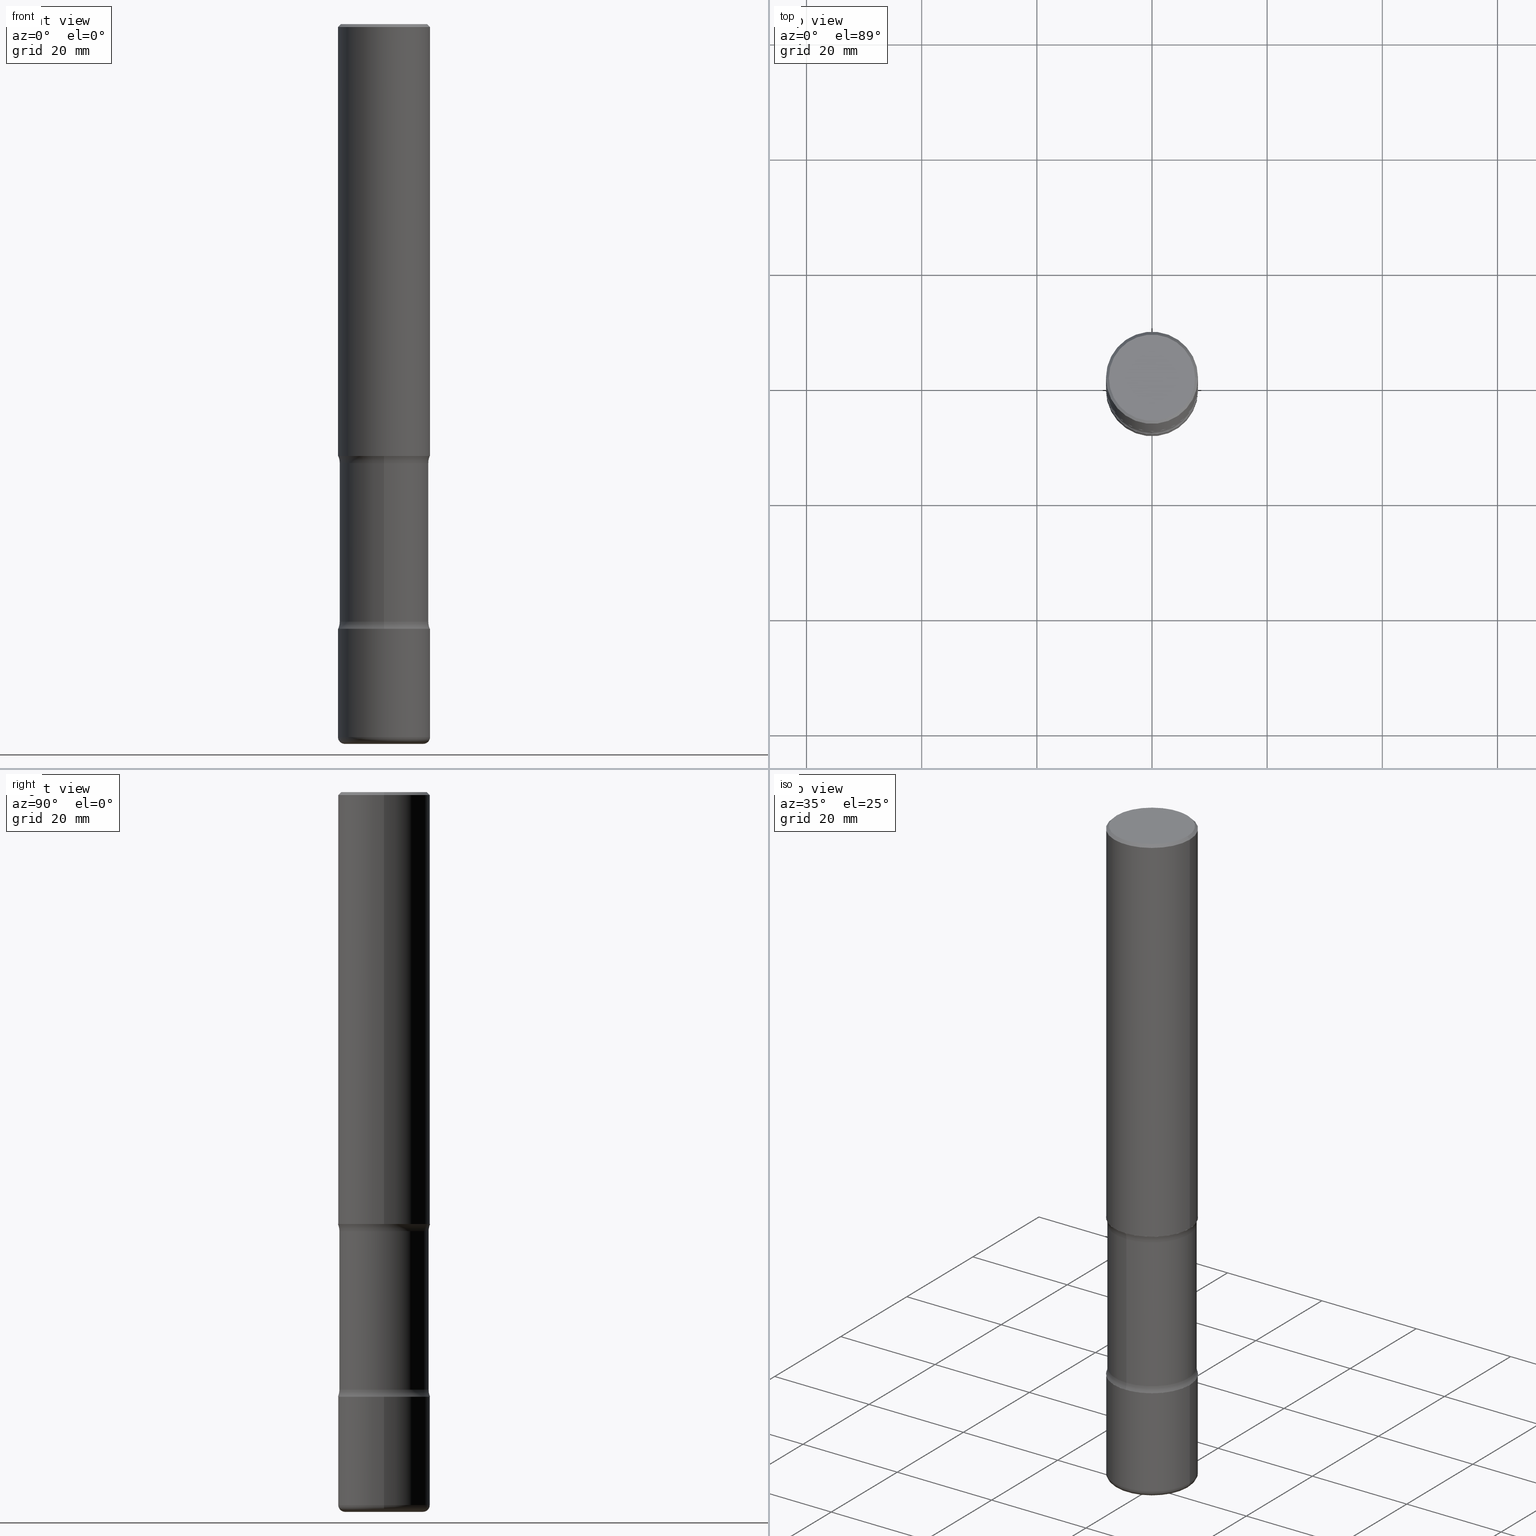
[diagram: canonical four-view strip — front | top / right | iso, engineering-drawing reading convention]
A machine part, canonical four-view strip (front | top / right | iso — engineering-drawing reading convention). The complete STEP part file that produces these views, byte-faithful:
ISO-10303-21;
HEADER;
FILE_DESCRIPTION (( 'STEP AP203' ),
    '1' );
FILE_NAME ('44966.STEP',
    '2024-03-02T04:05:12',
    ( '' ),
    ( '' ),
    'SwSTEP 2.0',
    'SolidWorks 2023',
    '' );
FILE_SCHEMA (( 'CONFIG_CONTROL_DESIGN' ));
ENDSEC;

DATA;
#1 = DATE_TIME_ROLE ( 'creation_date' ) ;
#2 = CIRCLE ( 'NONE', #301, 0.2677500000000002656 ) ;
#3 = APPROVAL_PERSON_ORGANIZATION ( #347, #390, #437 ) ;
#4 = DIRECTION ( 'NONE',  ( 2.567425907890858451E-29, -3.316831827833398617E-15, -1.000000000000000000 ) ) ;
#5 =( LENGTH_UNIT ( ) NAMED_UNIT ( * ) SI_UNIT ( $, .METRE. ) );
#6 = APPROVAL_DATE_TIME ( #86, #390 ) ;
#7 = EDGE_CURVE ( 'NONE', #246, #32, #523, .T. ) ;
#8 = DIRECTION ( 'NONE',  ( 1.000000000000000000, -6.982962677686266711E-15, 4.876176775795936353E-29 ) ) ;
#9 = CIRCLE ( 'NONE', #281, 0.3149500000000001743 ) ;
#10 = DIRECTION ( 'NONE',  ( 6.982962677686266711E-15, 1.000000000000000000, -3.582751467100673306E-15 ) ) ;
#11 = ADVANCED_FACE ( 'NONE', ( #135 ), #42, .T. ) ;
#12 = VECTOR ( 'NONE', #4, 39.37007874015748143 ) ;
#13 = CARTESIAN_POINT ( 'NONE',  ( 1.213091465776199422E-28, -1.704510808787969270E-14, -4.921299999999998676 ) ) ;
#14 = DIRECTION ( 'NONE',  ( -2.445468806185136597E-29, 3.491481338843145583E-15, 1.000000000000000000 ) ) ;
#15 = CALENDAR_DATE ( 2024, 1, 3 ) ;
#16 = CARTESIAN_POINT ( 'NONE',  ( 7.076936758078842679E-29, -1.051592463478965167E-14, -2.952799999999999869 ) ) ;
#17 = ADVANCED_FACE ( 'NONE', ( #180 ), #190, .T. ) ;
#18 = DIRECTION ( 'NONE',  ( -1.000000000000000000, 6.982962677686265922E-15, 0.000000000000000000 ) ) ;
#19 = AXIS2_PLACEMENT_3D ( 'NONE', #395, #399, #263 ) ;
#20 = CC_DESIGN_PERSON_AND_ORGANIZATION_ASSIGNMENT ( #502, #164, ( #154 ) ) ;
#21 = ORIENTED_EDGE ( 'NONE', *, *, #167, .T. ) ;
#22 = FACE_OUTER_BOUND ( 'NONE', #214, .T. ) ;
#23 = PLANE ( 'NONE',  #337 ) ;
#24 = EDGE_CURVE ( 'NONE', #169, #209, #9, .T. ) ;
#25 = DIRECTION ( 'NONE',  ( 2.438088387897960049E-29, -3.491481338843145188E-15, -1.000000000000000000 ) ) ;
#26 = ORIENTED_EDGE ( 'NONE', *, *, #68, .F. ) ;
#27 = ADVANCED_FACE ( 'NONE', ( #306 ), #174, .T. ) ;
#28 = CARTESIAN_POINT ( 'NONE',  ( 7.220980290903470182E-29, -1.030964609733603853E-14, -2.952799999999999869 ) ) ;
#29 = CIRCLE ( 'NONE', #429, 0.04720000000000004747 ) ;
#30 = TOROIDAL_SURFACE ( 'NONE', #58, 0.4300000000000000488, 0.1250000000000000000 ) ;
#31 = FACE_OUTER_BOUND ( 'NONE', #420, .T. ) ;
#32 = VERTEX_POINT ( 'NONE', #482 ) ;
#33 = DIRECTION ( 'NONE',  ( 6.982962677686265922E-15, 1.000000000000000000, -3.316831827833398617E-15 ) ) ;
#34 = DIRECTION ( 'NONE',  ( 6.982962677686265133E-15, 1.000000000000000000, -3.582751467100672517E-15 ) ) ;
#35 = ORIENTED_EDGE ( 'NONE', *, *, #84, .T. ) ;
#36 = PERSON_AND_ORGANIZATION_ROLE ( 'creator' ) ;
#37 = ORIENTED_EDGE ( 'NONE', *, *, #308, .T. ) ;
#38 = CIRCLE ( 'NONE', #392, 0.3049999999999999933 ) ;
#39 = CC_DESIGN_APPROVAL ( #206, ( #147 ) ) ;
#40 = EDGE_LOOP ( 'NONE', ( #322, #161 ) ) ;
#41 = ORIENTED_EDGE ( 'NONE', *, *, #525, .T. ) ;
#42 = CYLINDRICAL_SURFACE ( 'NONE', #159, 0.3149500000000002298 ) ;
#43 = PLANE ( 'NONE',  #310 ) ;
#44 = CARTESIAN_POINT ( 'NONE',  ( 2.129803616694432752E-15, 0.3049999999999830069, -4.921299999999999564 ) ) ;
#45 = CARTESIAN_POINT ( 'NONE',  ( -1.043851414335219820E-46, 1.490343170380447200E-32, 4.268512490100411279E-18 ) ) ;
#46 = AXIS2_PLACEMENT_3D ( 'NONE', #197, #448, #102 ) ;
#47 = CIRCLE ( 'NONE', #511, 0.3149500000000002298 ) ;
#48 = CARTESIAN_POINT ( 'NONE',  ( 9.983847599202101310E-29, -1.427133364927305841E-14, -4.085027743043726289 ) ) ;
#49 = FACE_OUTER_BOUND ( 'NONE', #346, .T. ) ;
#50 = COORDINATED_UNIVERSAL_TIME_OFFSET ( 5, 0, .BEHIND. ) ;
#51 = EDGE_CURVE ( 'NONE', #383, #387, #357, .T. ) ;
#52 = DIRECTION ( 'NONE',  ( -2.445468806185136597E-29, 3.491481338843145583E-15, 1.000000000000000000 ) ) ;
#53 = CC_DESIGN_PERSON_AND_ORGANIZATION_ASSIGNMENT ( #299, #473, ( #147 ) ) ;
#54 = CARTESIAN_POINT ( 'NONE',  ( -0.2677500000000002656, -1.503006189261502339E-14, -4.921300000000000452 ) ) ;
#55 = CIRCLE ( 'NONE', #60, 0.3149500000000002298 ) ;
#56 = CARTESIAN_POINT ( 'NONE',  ( 1.203488563587891594E-28, -1.718262711284877655E-14, -4.921300000000000452 ) ) ;
#57 = MANIFOLD_SOLID_BREP ( 'Body-Move/Copy2[2]', #202 ) ;
#58 = AXIS2_PLACEMENT_3D ( 'NONE', #527, #218, #393 ) ;
#59 = DIRECTION ( 'NONE',  ( 1.000000000000000000, -6.982962677686267499E-15, 4.876176775795935232E-29 ) ) ;
#60 = AXIS2_PLACEMENT_3D ( 'NONE', #447, #405, #186 ) ;
#61 = SHAPE_DEFINITION_REPRESENTATION ( #187, #177 ) ;
#62 = CARTESIAN_POINT ( 'NONE',  ( 2.199284095337391634E-15, 0.3149499999999856859, -4.133900000000000574 ) ) ;
#63 = ORIENTED_EDGE ( 'NONE', *, *, #230, .T. ) ;
#64 = DIRECTION ( 'NONE',  ( 1.000000000000000000, -6.982962677686267499E-15, 4.876053491004737710E-29 ) ) ;
#65 = CARTESIAN_POINT ( 'NONE',  ( 7.197422926421381501E-29, -1.068517127001083718E-14, -3.001672256956273710 ) ) ;
#66 = VERTEX_POINT ( 'NONE', #438 ) ;
#67 = CARTESIAN_POINT ( 'NONE',  ( 4.890937612370289799E-31, -6.982962677686315028E-17, -0.02000000000000006981 ) ) ;
#68 = EDGE_CURVE ( 'NONE', #469, #76, #219, .T. ) ;
#69 = DIRECTION ( 'NONE',  ( -2.445468806185136597E-29, 3.491481338843145583E-15, 1.000000000000000000 ) ) ;
#70 = DIRECTION ( 'NONE',  ( -2.445468806185136877E-29, 3.491481338843145188E-15, 1.000000000000000000 ) ) ;
#71 = APPROVAL_PERSON_ORGANIZATION ( #291, #381, #520 ) ;
#72 = ORIENTED_EDGE ( 'NONE', *, *, #51, .T. ) ;
#73 = CARTESIAN_POINT ( 'NONE',  ( -0.3149500000000000077, 2.237854346276435590E-15, -1.549218606675782676E-29 ) ) ;
#74 = DIRECTION ( 'NONE',  ( -1.000000000000000000, 6.982962677686265922E-15, 0.000000000000000000 ) ) ;
#75 = ADVANCED_FACE ( 'NONE', ( #178 ), #268, .T. ) ;
#76 = VERTEX_POINT ( 'NONE', #134 ) ;
#77 = CARTESIAN_POINT ( 'NONE',  ( -0.3149499999999998967, 2.129454468560425784E-15, -0.02000000000000006981 ) ) ;
#78 = ORIENTED_EDGE ( 'NONE', *, *, #308, .F. ) ;
#79 = CIRCLE ( 'NONE', #146, 0.2677500000000002656 ) ;
#80 = CC_DESIGN_APPROVAL ( #390, ( #382 ) ) ;
#81 = FACE_OUTER_BOUND ( 'NONE', #430, .T. ) ;
#82 = EDGE_LOOP ( 'NONE', ( #260, #343, #251, #129 ) ) ;
#83 = VERTEX_POINT ( 'NONE', #529 ) ;
#84 = EDGE_CURVE ( 'NONE', #379, #109, #541, .T. ) ;
#85 = VERTEX_POINT ( 'NONE', #226 ) ;
#86 = DATE_AND_TIME ( #220, #457 ) ;
#87 = AXIS2_PLACEMENT_3D ( 'NONE', #175, #421, #33 ) ;
#88 = AXIS2_PLACEMENT_3D ( 'NONE', #250, #188, #359 ) ;
#89 = DIRECTION ( 'NONE',  ( -1.000000000000000000, 6.982962677686265922E-15, -4.883557194083112340E-29 ) ) ;
#90 = DIRECTION ( 'NONE',  ( -2.445468806185136597E-29, 3.491481338843145583E-15, 1.000000000000000000 ) ) ;
#91 = UNCERTAINTY_MEASURE_WITH_UNIT (LENGTH_MEASURE( 1.000000000000000082E-05 ), #431, 'distance_accuracy_value', 'NONE');
#92 = DIRECTION ( 'NONE',  ( -2.445468806185136597E-29, 3.491481338843145583E-15, 1.000000000000000000 ) ) ;
#93 = CARTESIAN_POINT ( 'NONE',  ( 1.191945950822697745E-28, -1.701782919365538030E-14, -4.874100000000001209 ) ) ;
#94 = CIRCLE ( 'NONE', #139, 0.3149500000000003408 ) ;
#95 = CONICAL_SURFACE ( 'NONE', #132, 0.3149499999999998967, 0.7853981633974479459 ) ;
#96 = DIRECTION ( 'NONE',  ( 2.567425907890858451E-29, -3.316831827833398617E-15, -1.000000000000000000 ) ) ;
#97 = ADVANCED_FACE ( 'NONE', ( #140 ), #524, .T. ) ;
#98 = DIRECTION ( 'NONE',  ( -2.445468806185136597E-29, 3.491481338843145583E-15, 1.000000000000000000 ) ) ;
#99 = CARTESIAN_POINT ( 'NONE',  ( 4.890937612370289799E-31, -6.982962677686315028E-17, -0.02000000000000006981 ) ) ;
#100 = APPROVAL_STATUS ( 'not_yet_approved' ) ;
#101 = TOROIDAL_SURFACE ( 'NONE', #88, 0.4300000000000000488, 0.1250000000000000000 ) ;
#102 = DIRECTION ( 'NONE',  ( 6.982962677686265133E-15, 1.000000000000000000, -3.582751467100671728E-15 ) ) ;
#103 = FACE_OUTER_BOUND ( 'NONE', #82, .T. ) ;
#104 = CIRCLE ( 'NONE', #176, 0.3149499999999998967 ) ;
#105 = EDGE_LOOP ( 'NONE', ( #338, #148, #385, #279 ) ) ;
#106 = ADVANCED_FACE ( 'NONE', ( #344 ), #433, .T. ) ;
#107 = CARTESIAN_POINT ( 'NONE',  ( -1.043851414335219820E-46, 1.490343170380447200E-32, 4.268512490100411279E-18 ) ) ;
#108 = EDGE_CURVE ( 'NONE', #209, #32, #449, .T. ) ;
#109 = VERTEX_POINT ( 'NONE', #352 ) ;
#110 = VECTOR ( 'NONE', #354, 39.37007874015748143 ) ;
#111 = AXIS2_PLACEMENT_3D ( 'NONE', #540, #326, #152 ) ;
#112 = EDGE_CURVE ( 'NONE', #83, #117, #2, .T. ) ;
#113 = DIRECTION ( 'NONE',  ( -2.567425907890857890E-29, 3.316831827833398617E-15, 1.000000000000000000 ) ) ;
#114 = EDGE_LOOP ( 'NONE', ( #463, #423, #426, #240 ) ) ;
#115 = LINE ( 'NONE', #287, #210 ) ;
#116 = DIRECTION ( 'NONE',  ( 2.438088387897960049E-29, -3.491481338843145188E-15, -1.000000000000000000 ) ) ;
#117 = VERTEX_POINT ( 'NONE', #54 ) ;
#118 = CARTESIAN_POINT ( 'NONE',  ( 0.2677500000000002656, -1.888751745060587925E-14, -4.874100000000001209 ) ) ;
#119 = ORIENTED_EDGE ( 'NONE', *, *, #470, .T. ) ;
#120 = DIRECTION ( 'NONE',  ( 1.000000000000000000, -6.860497997771530774E-15, 4.842937719270450124E-29 ) ) ;
#121 = VECTOR ( 'NONE', #207, 39.37007874015748143 ) ;
#122 = AXIS2_PLACEMENT_3D ( 'NONE', #380, #90, #464 ) ;
#123 = EDGE_LOOP ( 'NONE', ( #503, #546, #126, #293 ) ) ;
#124 = EDGE_CURVE ( 'NONE', #76, #472, #245, .T. ) ;
#125 = ORIENTED_EDGE ( 'NONE', *, *, #271, .F. ) ;
#126 = ORIENTED_EDGE ( 'NONE', *, *, #127, .T. ) ;
#127 = EDGE_CURVE ( 'NONE', #469, #246, #435, .T. ) ;
#128 = SECURITY_CLASSIFICATION_LEVEL ( 'unclassified' ) ;
#129 = ORIENTED_EDGE ( 'NONE', *, *, #230, .F. ) ;
#130 = AXIS2_PLACEMENT_3D ( 'NONE', #303, #52, #264 ) ;
#131 = EDGE_CURVE ( 'NONE', #370, #383, #199, .T. ) ;
#132 = AXIS2_PLACEMENT_3D ( 'NONE', #67, #235, #18 ) ;
#133 = AXIS2_PLACEMENT_3D ( 'NONE', #391, #96, #526 ) ;
#134 = CARTESIAN_POINT ( 'NONE',  ( 2.199284095337362446E-15, 0.3149499999999899047, -2.952800000000000757 ) ) ;
#135 = FACE_OUTER_BOUND ( 'NONE', #374, .T. ) ;
#136 = DIRECTION ( 'NONE',  ( 1.000000000000000000, -6.982962677686267499E-15, 4.876053491004737710E-29 ) ) ;
#137 = DATE_AND_TIME ( #183, #221 ) ;
#138 = DIRECTION ( 'NONE',  ( 1.000000000000000000, -6.982962677686267499E-15, 4.876176775795935232E-29 ) ) ;
#139 = AXIS2_PLACEMENT_3D ( 'NONE', #16, #408, #500 ) ;
#140 = FACE_OUTER_BOUND ( 'NONE', #555, .T. ) ;
#141 = APPROVAL_DATE_TIME ( #137, #206 ) ;
#142 = CARTESIAN_POINT ( 'NONE',  ( 0.000000000000000000, 0.000000000000000000, 0.000000000000000000 ) ) ;
#143 = COORDINATED_UNIVERSAL_TIME_OFFSET ( 5, 0, .BEHIND. ) ;
#144 = FACE_OUTER_BOUND ( 'NONE', #353, .T. ) ;
#145 = CARTESIAN_POINT ( 'NONE',  ( 2.129803616694383843E-15, 0.3049999999999893907, -3.001672256956274598 ) ) ;
#146 = AXIS2_PLACEMENT_3D ( 'NONE', #56, #462, #239 ) ;
#147 = SECURITY_CLASSIFICATION ( '', '', #128 ) ;
#148 = ORIENTED_EDGE ( 'NONE', *, *, #24, .F. ) ;
#149 = DIRECTION ( 'NONE',  ( 1.000000000000000000, -6.982962677686269866E-15, 0.000000000000000000 ) ) ;
#150 = ADVANCED_FACE ( 'NONE', ( #31 ), #313, .T. ) ;
#151 = ORIENTED_EDGE ( 'NONE', *, *, #253, .T. ) ;
#152 = DIRECTION ( 'NONE',  ( 6.982962677686265133E-15, 1.000000000000000000, -3.582751467100671728E-15 ) ) ;
#153 = ADVANCED_FACE ( 'NONE', ( #369 ), #355, .F. ) ;
#154 = PRODUCT ( '44966', '44966', '', ( #156 ) ) ;
#155 = DIRECTION ( 'NONE',  ( 7.105427357601001859E-15, 1.000000000000000000, -3.491481338843145583E-15 ) ) ;
#156 = MECHANICAL_CONTEXT ( 'NONE', #445, 'mechanical' ) ;
#157 = CIRCLE ( 'NONE', #403, 0.04720000000000004747 ) ;
#158 = AXIS2_PLACEMENT_3D ( 'NONE', #320, #496, #149 ) ;
#159 = AXIS2_PLACEMENT_3D ( 'NONE', #142, #478, #138 ) ;
#160 = CARTESIAN_POINT ( 'NONE',  ( 3.002673951405194792E-15, 0.4299999999999857825, -4.085027743043728066 ) ) ;
#161 = ORIENTED_EDGE ( 'NONE', *, *, #507, .T. ) ;
#162 = ORIENTED_EDGE ( 'NONE', *, *, #537, .F. ) ;
#163 = CARTESIAN_POINT ( 'NONE',  ( 0.3149500000000000077, -2.199284095337289871E-15, 1.535751875536930130E-29 ) ) ;
#164 = PERSON_AND_ORGANIZATION_ROLE ( 'design_owner' ) ;
#165 = VERTEX_POINT ( 'NONE', #539 ) ;
#166 =( NAMED_UNIT ( * ) PLANE_ANGLE_UNIT ( ) SI_UNIT ( $, .RADIAN. ) );
#167 = EDGE_CURVE ( 'NONE', #32, #246, #38, .T. ) ;
#168 = ORIENTED_EDGE ( 'NONE', *, *, #397, .F. ) ;
#169 = VERTEX_POINT ( 'NONE', #62 ) ;
#170 = EDGE_CURVE ( 'NONE', #169, #246, #362, .T. ) ;
#171 = PERSON_AND_ORGANIZATION ( #531, #228 ) ;
#172 = ORIENTED_EDGE ( 'NONE', *, *, #112, .F. ) ;
#173 = EDGE_CURVE ( 'NONE', #83, #383, #29, .T. ) ;
#174 = CYLINDRICAL_SURFACE ( 'NONE', #133, 0.3050000000000000488 ) ;
#175 = CARTESIAN_POINT ( 'NONE',  ( 7.220980290903470182E-29, -1.030964609733603853E-14, -2.952799999999999869 ) ) ;
#176 = AXIS2_PLACEMENT_3D ( 'NONE', #194, #233, #368 ) ;
#177 = ADVANCED_BREP_SHAPE_REPRESENTATION ( '44966', ( #436, #57, #249, #483 ), #494 ) ;
#178 = FACE_OUTER_BOUND ( 'NONE', #471, .T. ) ;
#179 = DESIGN_CONTEXT ( 'detailed design', #262, 'design' ) ;
#180 = FACE_OUTER_BOUND ( 'NONE', #504, .T. ) ;
#181 = CC_DESIGN_PERSON_AND_ORGANIZATION_ASSIGNMENT ( #479, #394, ( #321 ) ) ;
#182 = CARTESIAN_POINT ( 'NONE',  ( -2.950014139041658670E-15, -0.4300000000000143152, -4.085027743043724513 ) ) ;
#183 = CALENDAR_DATE ( 2024, 1, 3 ) ;
#184 = AXIS2_PLACEMENT_3D ( 'NONE', #501, #543, #332 ) ;
#185 = CARTESIAN_POINT ( 'NONE',  ( 1.191945950822697745E-28, -1.701782919365538030E-14, -4.874100000000001209 ) ) ;
#186 = DIRECTION ( 'NONE',  ( 1.000000000000000000, -6.982962677686264344E-15, 0.000000000000000000 ) ) ;
#187 = PRODUCT_DEFINITION_SHAPE ( 'NONE', 'NONE',  #321 ) ;
#188 = DIRECTION ( 'NONE',  ( 2.567425907890858451E-29, -3.316831827833398617E-15, -1.000000000000000000 ) ) ;
#189 = APPROVAL_ROLE ( '' ) ;
#190 = TOROIDAL_SURFACE ( 'NONE', #510, 0.2677500000000002656, 0.04720000000000001278 ) ;
#191 = DIRECTION ( 'NONE',  ( 2.438088387897960049E-29, -3.491481338843145188E-15, -1.000000000000000000 ) ) ;
#192 = AXIS2_PLACEMENT_3D ( 'NONE', #107, #69, #64 ) ;
#193 = ADVANCED_FACE ( 'NONE', ( #81 ), #314, .T. ) ;
#194 = CARTESIAN_POINT ( 'NONE',  ( 4.890937612370289799E-31, -6.982962677686315028E-17, -0.02000000000000006981 ) ) ;
#195 = CARTESIAN_POINT ( 'NONE',  ( -2.092451889320195532E-15, -0.3050000000000170908, -4.921299999999997787 ) ) ;
#196 = CARTESIAN_POINT ( 'NONE',  ( -0.3149500000000002853, -1.477997484737894116E-14, -4.874100000000001209 ) ) ;
#197 = CARTESIAN_POINT ( 'NONE',  ( 7.202412656765479231E-29, -1.067802569216027239E-14, -3.001672256956273710 ) ) ;
#198 = ORIENTED_EDGE ( 'NONE', *, *, #454, .T. ) ;
#199 = CIRCLE ( 'NONE', #274, 0.3149500000000002853 ) ;
#200 = ORIENTED_EDGE ( 'NONE', *, *, #255, .T. ) ;
#201 = VECTOR ( 'NONE', #70, 39.37007874015748143 ) ;
#202 = CLOSED_SHELL ( 'NONE', ( #106, #474, #241, #223, #424, #97 ) ) ;
#203 = LINE ( 'NONE', #163, #121 ) ;
#204 = ORIENTED_EDGE ( 'NONE', *, *, #312, .T. ) ;
#205 = FACE_OUTER_BOUND ( 'NONE', #340, .T. ) ;
#206 = APPROVAL ( #100, 'UNSPECIFIED' ) ;
#207 = DIRECTION ( 'NONE',  ( -2.445468806185136877E-29, 3.491481338843145188E-15, 1.000000000000000000 ) ) ;
#208 = ORIENTED_EDGE ( 'NONE', *, *, #84, .F. ) ;
#209 = VERTEX_POINT ( 'NONE', #232 ) ;
#210 = VECTOR ( 'NONE', #461, 39.37007874015748143 ) ;
#211 = APPROVAL_STATUS ( 'not_yet_approved' ) ;
#212 = CC_DESIGN_PERSON_AND_ORGANIZATION_ASSIGNMENT ( #171, #36, ( #382 ) ) ;
#213 = ORIENTED_EDGE ( 'NONE', *, *, #124, .F. ) ;
#214 = EDGE_LOOP ( 'NONE', ( #558, #119 ) ) ;
#215 = DIRECTION ( 'NONE',  ( 1.000000000000000000, -6.860497997771530774E-15, 4.842937719270450124E-29 ) ) ;
#216 = DIRECTION ( 'NONE',  ( 1.000000000000000000, -6.982962677686265922E-15, 4.876176775795935793E-29 ) ) ;
#217 = DIRECTION ( 'NONE',  ( 2.567425907890858451E-29, -3.316831827833398617E-15, -1.000000000000000000 ) ) ;
#218 = DIRECTION ( 'NONE',  ( 2.567425907890858451E-29, -3.316831827833398617E-15, -1.000000000000000000 ) ) ;
#219 = CIRCLE ( 'NONE', #371, 0.1249999999999999029 ) ;
#220 = CALENDAR_DATE ( 2024, 1, 3 ) ;
#221 = LOCAL_TIME ( 23, 5, 12.00000000000000000, #50 ) ;
#222 = DIRECTION ( 'NONE',  ( 1.000000000000000000, -6.982962677686269866E-15, 4.883557194083114022E-29 ) ) ;
#223 = ADVANCED_FACE ( 'NONE', ( #329 ), #404, .F. ) ;
#224 = CARTESIAN_POINT ( 'NONE',  ( 1.010932349788873450E-28, -1.443343470664368071E-14, -4.133899999999999686 ) ) ;
#225 = EDGE_CURVE ( 'NONE', #117, #83, #79, .T. ) ;
#226 = CARTESIAN_POINT ( 'NONE',  ( 0.2949499999999998234, -2.127023677808859286E-15, 4.268512490115050658E-18 ) ) ;
#227 = AXIS2_PLACEMENT_3D ( 'NONE', #182, #215, #311 ) ;
#228 = ORGANIZATION ( 'UNSPECIFIED', 'UNSPECIFIED', '' ) ;
#229 = DIRECTION ( 'NONE',  ( -2.445468806185136597E-29, 3.491481338843145583E-15, 1.000000000000000000 ) ) ;
#230 = EDGE_CURVE ( 'NONE', #66, #379, #460, .T. ) ;
#231 = AXIS2_PLACEMENT_3D ( 'NONE', #160, #491, #506 ) ;
#232 = CARTESIAN_POINT ( 'NONE',  ( -2.160713844398043177E-15, -0.3149500000000144961, -4.133899999999998798 ) ) ;
#233 = DIRECTION ( 'NONE',  ( -2.445468806185136597E-29, 3.491481338843145583E-15, 1.000000000000000000 ) ) ;
#234 = CALENDAR_DATE ( 2024, 1, 3 ) ;
#235 = DIRECTION ( 'NONE',  ( 2.445468806185136597E-29, -3.491481338843145583E-15, -1.000000000000000000 ) ) ;
#236 = LOCAL_TIME ( 23, 5, 12.00000000000000000, #143 ) ;
#237 = FACE_OUTER_BOUND ( 'NONE', #267, .T. ) ;
#238 = DIRECTION ( 'NONE',  ( 2.567425907890858451E-29, -3.316831827833398617E-15, -1.000000000000000000 ) ) ;
#239 = DIRECTION ( 'NONE',  ( 1.000000000000000000, -6.982962677686272233E-15, 0.000000000000000000 ) ) ;
#240 = ORIENTED_EDGE ( 'NONE', *, *, #255, .F. ) ;
#241 = ADVANCED_FACE ( 'NONE', ( #144 ), #498, .T. ) ;
#242 = ORIENTED_EDGE ( 'NONE', *, *, #225, .F. ) ;
#243 = CARTESIAN_POINT ( 'NONE',  ( 0.3149500000000002853, -1.921711328899267175E-14, -4.874100000000001209 ) ) ;
#244 = DIRECTION ( 'NONE',  ( 1.000000000000000000, -6.982962677686292743E-15, 0.000000000000000000 ) ) ;
#245 = CIRCLE ( 'NONE', #19, 0.3149500000000003408 ) ;
#246 = VERTEX_POINT ( 'NONE', #499 ) ;
#247 = FACE_OUTER_BOUND ( 'NONE', #441, .T. ) ;
#248 = LOCAL_TIME ( 23, 5, 12.00000000000000000, #425 ) ;
#249 = MANIFOLD_SOLID_BREP ( 'Body-Move/Copy2[4]', #477 ) ;
#250 = CARTESIAN_POINT ( 'NONE',  ( 9.989807918014305530E-29, -1.426279813349370412E-14, -4.085027743043726289 ) ) ;
#251 = ORIENTED_EDGE ( 'NONE', *, *, #516, .T. ) ;
#252 = DIRECTION ( 'NONE',  ( -2.438088387897960049E-29, 3.491481338843145188E-15, 1.000000000000000000 ) ) ;
#253 = EDGE_CURVE ( 'NONE', #469, #319, #400, .T. ) ;
#254 = ORIENTED_EDGE ( 'NONE', *, *, #124, .T. ) ;
#255 = EDGE_CURVE ( 'NONE', #549, #109, #203, .T. ) ;
#256 = ORIENTED_EDGE ( 'NONE', *, *, #170, .F. ) ;
#257 = CARTESIAN_POINT ( 'NONE',  ( 0.3149500000000001743, -1.663271880198097216E-14, -4.133899999999999686 ) ) ;
#258 = AXIS2_PLACEMENT_3D ( 'NONE', #259, #92, #442 ) ;
#259 = CARTESIAN_POINT ( 'NONE',  ( 4.890937612370289799E-31, -6.982962677686315028E-17, -0.02000000000000006981 ) ) ;
#260 = ORIENTED_EDGE ( 'NONE', *, *, #507, .F. ) ;
#261 = DIRECTION ( 'NONE',  ( 1.000000000000000000, 0.000000000000000000, 0.000000000000000000 ) ) ;
#262 = APPLICATION_CONTEXT ( 'configuration controlled 3d designs of mechanical parts and assemblies' ) ;
#263 = DIRECTION ( 'NONE',  ( 6.982962677686265922E-15, 1.000000000000000000, -3.469564049740289220E-15 ) ) ;
#264 = DIRECTION ( 'NONE',  ( 1.000000000000000000, -6.982962677686266711E-15, 4.876176775795936353E-29 ) ) ;
#265 = ADVANCED_FACE ( 'NONE', ( #466 ), #101, .F. ) ;
#266 = DIRECTION ( 'NONE',  ( 1.000000000000000000, -6.982962677686265922E-15, 0.000000000000000000 ) ) ;
#267 = EDGE_LOOP ( 'NONE', ( #204, #536 ) ) ;
#268 = TOROIDAL_SURFACE ( 'NONE', #292, 0.2677500000000002656, 0.04720000000000001278 ) ;
#269 = AXIS2_PLACEMENT_3D ( 'NONE', #550, #120, #294 ) ;
#270 = DIRECTION ( 'NONE',  ( -2.445468806185136597E-29, 3.491481338843145583E-15, 1.000000000000000000 ) ) ;
#271 = EDGE_CURVE ( 'NONE', #117, #370, #157, .T. ) ;
#272 = DIRECTION ( 'NONE',  ( 1.000000000000000000, -6.982962677686272233E-15, 0.000000000000000000 ) ) ;
#273 = DIRECTION ( 'NONE',  ( 6.982962677686266711E-15, 1.000000000000000000, -3.582751467100673306E-15 ) ) ;
#274 = AXIS2_PLACEMENT_3D ( 'NONE', #551, #229, #406 ) ;
#275 = CIRCLE ( 'NONE', #111, 0.3050000000000001044 ) ;
#276 = CARTESIAN_POINT ( 'NONE',  ( -0.2677500000000002656, -1.511535101865770937E-14, -4.874100000000001209 ) ) ;
#277 = ORIENTED_EDGE ( 'NONE', *, *, #454, .F. ) ;
#278 = DIRECTION ( 'NONE',  ( 6.982962677686264344E-15, 1.000000000000000000, -3.469564049740291192E-15 ) ) ;
#279 = ORIENTED_EDGE ( 'NONE', *, *, #7, .T. ) ;
#280 = ADVANCED_FACE ( 'NONE', ( #22 ), #367, .F. ) ;
#281 = AXIS2_PLACEMENT_3D ( 'NONE', #224, #398, #446 ) ;
#282 = APPROVAL_PERSON_ORGANIZATION ( #402, #206, #189 ) ;
#283 = ORIENTED_EDGE ( 'NONE', *, *, #537, .T. ) ;
#284 = DIRECTION ( 'NONE',  ( 6.982962677686265922E-15, 1.000000000000000000, -3.316831827833398617E-15 ) ) ;
#285 = DIRECTION ( 'NONE',  ( -6.982962677686266711E-15, -1.000000000000000000, 3.491481338843145583E-15 ) ) ;
#286 = ADVANCED_FACE ( 'NONE', ( #465 ), #316, .T. ) ;
#287 = CARTESIAN_POINT ( 'NONE',  ( -0.3149500000000002298, 2.237854346276437168E-15, -1.549218606675783517E-29 ) ) ;
#288 = DIRECTION ( 'NONE',  ( -1.000000000000000000, 6.982962677686265922E-15, -4.876176775795935793E-29 ) ) ;
#289 = EDGE_LOOP ( 'NONE', ( #162, #509, #72, #168 ) ) ;
#290 = CARTESIAN_POINT ( 'NONE',  ( 2.059624841783562880E-15, 0.2949499999999998234, -1.027678164646734974E-15 ) ) ;
#291 = PERSON_AND_ORGANIZATION ( #531, #228 ) ;
#292 = AXIS2_PLACEMENT_3D ( 'NONE', #93, #270, #222 ) ;
#293 = ORIENTED_EDGE ( 'NONE', *, *, #167, .F. ) ;
#294 = DIRECTION ( 'NONE',  ( 6.860497997771531562E-15, 1.000000000000000000, 0.000000000000000000 ) ) ;
#295 = AXIS2_PLACEMENT_3D ( 'NONE', #45, #350, #136 ) ;
#296 = ORIENTED_EDGE ( 'NONE', *, *, #488, .F. ) ;
#297 = CALENDAR_DATE ( 2024, 1, 3 ) ;
#298 = ORIENTED_EDGE ( 'NONE', *, *, #112, .T. ) ;
#299 = PERSON_AND_ORGANIZATION ( #531, #228 ) ;
#300 = ORIENTED_EDGE ( 'NONE', *, *, #127, .F. ) ;
#301 = AXIS2_PLACEMENT_3D ( 'NONE', #349, #98, #272 ) ;
#302 = CIRCLE ( 'NONE', #122, 0.3149500000000001743 ) ;
#303 = CARTESIAN_POINT ( 'NONE',  ( 0.000000000000000000, 0.000000000000000000, 0.000000000000000000 ) ) ;
#304 = LENGTH_MEASURE_WITH_UNIT ( LENGTH_MEASURE( 0.02539999999999999897 ), #5 );
#305 = CC_DESIGN_DATE_AND_TIME_ASSIGNMENT ( #532, #490, ( #147 ) ) ;
#306 = FACE_OUTER_BOUND ( 'NONE', #123, .T. ) ;
#307 = CARTESIAN_POINT ( 'NONE',  ( 3.002673951405166393E-15, 0.4299999999999893352, -3.001672256956275042 ) ) ;
#308 = EDGE_CURVE ( 'NONE', #373, #549, #55, .T. ) ;
#309 = ORIENTED_EDGE ( 'NONE', *, *, #363, .F. ) ;
#310 = AXIS2_PLACEMENT_3D ( 'NONE', #434, #252, #216 ) ;
#311 = DIRECTION ( 'NONE',  ( 6.860497997771529985E-15, 1.000000000000000000, 0.000000000000000000 ) ) ;
#312 = EDGE_CURVE ( 'NONE', #387, #165, #339, .T. ) ;
#313 = CYLINDRICAL_SURFACE ( 'NONE', #325, 0.3050000000000000488 ) ;
#314 = PLANE ( 'NONE',  #418 ) ;
#315 = FACE_OUTER_BOUND ( 'NONE', #557, .T. ) ;
#316 = CYLINDRICAL_SURFACE ( 'NONE', #451, 0.3149500000000002298 ) ;
#317 = TOROIDAL_SURFACE ( 'NONE', #372, 0.4299999999999999933, 0.1249999999999999029 ) ;
#318 = LINE ( 'NONE', #195, #345 ) ;
#319 = VERTEX_POINT ( 'NONE', #440 ) ;
#320 = CARTESIAN_POINT ( 'NONE',  ( 1.191945950822697745E-28, -1.701782919365538030E-14, -4.874100000000001209 ) ) ;
#321 = PRODUCT_DEFINITION ( 'UNKNOWN', '', #382, #179 ) ;
#322 = ORIENTED_EDGE ( 'NONE', *, *, #341, .T. ) ;
#323 = ADVANCED_FACE ( 'NONE', ( #315 ), #30, .F. ) ;
#324 = CARTESIAN_POINT ( 'NONE',  ( 1.010932349788873450E-28, -1.443343470664368071E-14, -4.133899999999999686 ) ) ;
#325 = AXIS2_PLACEMENT_3D ( 'NONE', #13, #414, #34 ) ;
#326 = DIRECTION ( 'NONE',  ( 2.567425907890858451E-29, -3.316831827833398617E-15, -1.000000000000000000 ) ) ;
#327 = AXIS2_PLACEMENT_3D ( 'NONE', #290, #25, #288 ) ;
#328 = CARTESIAN_POINT ( 'NONE',  ( -0.3149500000000002298, -2.951883515780010590E-15, -2.952799999999999869 ) ) ;
#329 = FACE_OUTER_BOUND ( 'NONE', #40, .T. ) ;
#330 = ORIENTED_EDGE ( 'NONE', *, *, #225, .T. ) ;
#331 = ORIENTED_EDGE ( 'NONE', *, *, #351, .F. ) ;
#332 = DIRECTION ( 'NONE',  ( 6.982962677686265922E-15, 1.000000000000000000, -3.316831827833398617E-15 ) ) ;
#333 = APPLICATION_PROTOCOL_DEFINITION ( 'international standard', 'config_control_design', 1994, #262 ) ;
#334 = ORIENTED_EDGE ( 'NONE', *, *, #51, .F. ) ;
#335 = APPLICATION_PROTOCOL_DEFINITION ( 'international standard', 'config_control_design', 1994, #445 ) ;
#336 = ORIENTED_EDGE ( 'NONE', *, *, #108, .T. ) ;
#337 = AXIS2_PLACEMENT_3D ( 'NONE', #453, #191, #361 ) ;
#338 = ORIENTED_EDGE ( 'NONE', *, *, #108, .F. ) ;
#339 = CIRCLE ( 'NONE', #535, 0.3149500000000001743 ) ;
#340 = EDGE_LOOP ( 'NONE', ( #515, #78 ) ) ;
#341 = EDGE_CURVE ( 'NONE', #66, #85, #542, .T. ) ;
#342 =( NAMED_UNIT ( * ) SI_UNIT ( $, .STERADIAN. ) SOLID_ANGLE_UNIT ( ) );
#343 = ORIENTED_EDGE ( 'NONE', *, *, #351, .T. ) ;
#344 = FACE_OUTER_BOUND ( 'NONE', #114, .T. ) ;
#345 = VECTOR ( 'NONE', #411, 39.37007874015748143 ) ;
#346 = EDGE_LOOP ( 'NONE', ( #377, #198, #41, #26 ) ) ;
#347 = PERSON_AND_ORGANIZATION ( #531, #228 ) ;
#348 = ADVANCED_FACE ( 'NONE', ( #49 ), #317, .F. ) ;
#349 = CARTESIAN_POINT ( 'NONE',  ( 1.203488563587891594E-28, -1.718262711284877655E-14, -4.921300000000000452 ) ) ;
#350 = DIRECTION ( 'NONE',  ( -2.445468806185136597E-29, 3.491481338843145583E-15, 1.000000000000000000 ) ) ;
#351 = EDGE_CURVE ( 'NONE', #85, #109, #396, .T. ) ;
#352 = CARTESIAN_POINT ( 'NONE',  ( 0.3149499999999998967, -2.230543471175006266E-15, -0.02000000000000006981 ) ) ;
#353 = EDGE_LOOP ( 'NONE', ( #331, #455, #63, #35 ) ) ;
#354 = DIRECTION ( 'NONE',  ( -2.445468806185136877E-29, 3.491481338843145188E-15, 1.000000000000000000 ) ) ;
#355 = TOROIDAL_SURFACE ( 'NONE', #184, 0.4299999999999999933, 0.1249999999999999029 ) ;
#356 = CC_DESIGN_SECURITY_CLASSIFICATION ( #147, ( #382 ) ) ;
#357 = LINE ( 'NONE', #481, #110 ) ;
#358 = CARTESIAN_POINT ( 'NONE',  ( 1.010932349788873450E-28, -1.443343470664368071E-14, -4.133899999999999686 ) ) ;
#359 = DIRECTION ( 'NONE',  ( 6.982962677686265922E-15, 1.000000000000000000, -3.316831827833398617E-15 ) ) ;
#360 = DIRECTION ( 'NONE',  ( 0.000000000000000000, 0.000000000000000000, 1.000000000000000000 ) ) ;
#361 = DIRECTION ( 'NONE',  ( -1.000000000000000000, 6.982962677686265922E-15, -4.876176775795935793E-29 ) ) ;
#362 = CIRCLE ( 'NONE', #231, 0.1250000000000000000 ) ;
#363 = EDGE_CURVE ( 'NONE', #373, #379, #505, .T. ) ;
#364 = AXIS2_PLACEMENT_3D ( 'NONE', #492, #238, #278 ) ;
#365 = ORIENTED_EDGE ( 'NONE', *, *, #173, .F. ) ;
#366 = CARTESIAN_POINT ( 'NONE',  ( -2.160713844398075521E-15, -0.3149500000000107769, -2.952799999999998537 ) ) ;
#367 = PLANE ( 'NONE',  #544 ) ;
#368 = DIRECTION ( 'NONE',  ( 1.000000000000000000, -6.982962677686265922E-15, 0.000000000000000000 ) ) ;
#369 = FACE_OUTER_BOUND ( 'NONE', #512, .T. ) ;
#370 = VERTEX_POINT ( 'NONE', #196 ) ;
#371 = AXIS2_PLACEMENT_3D ( 'NONE', #307, #89, #389 ) ;
#372 = AXIS2_PLACEMENT_3D ( 'NONE', #65, #538, #284 ) ;
#373 = VERTEX_POINT ( 'NONE', #328 ) ;
#374 = EDGE_LOOP ( 'NONE', ( #552, #283, #519, #334 ) ) ;
#375 = CLOSED_SHELL ( 'NONE', ( #11, #75, #193, #17, #286, #484 ) ) ;
#376 = DIRECTION ( 'NONE',  ( -1.000000000000000000, 6.982962677686265922E-15, -4.876176775795935793E-29 ) ) ;
#377 = ORIENTED_EDGE ( 'NONE', *, *, #456, .F. ) ;
#378 = DIRECTION ( 'NONE',  ( 2.445468806185136597E-29, -3.491481338843145583E-15, -1.000000000000000000 ) ) ;
#379 = VERTEX_POINT ( 'NONE', #77 ) ;
#380 = CARTESIAN_POINT ( 'NONE',  ( 1.010932349788873450E-28, -1.443343470664368071E-14, -4.133899999999999686 ) ) ;
#381 = APPROVAL ( #468, 'UNSPECIFIED' ) ;
#382 = PRODUCT_DEFINITION_FORMATION_WITH_SPECIFIED_SOURCE ( 'ANY', '', #154, .NOT_KNOWN. ) ;
#383 = VERTEX_POINT ( 'NONE', #243 ) ;
#384 = COORDINATED_UNIVERSAL_TIME_OFFSET ( 5, 0, .BEHIND. ) ;
#385 = ORIENTED_EDGE ( 'NONE', *, *, #170, .T. ) ;
#386 = EDGE_CURVE ( 'NONE', #549, #373, #47, .T. ) ;
#387 = VERTEX_POINT ( 'NONE', #257 ) ;
#388 = DIRECTION ( 'NONE',  ( -6.982962677686265922E-15, -1.000000000000000000, 3.316831827833398617E-15 ) ) ;
#389 = DIRECTION ( 'NONE',  ( -6.982962677686264344E-15, -1.000000000000000000, 0.000000000000000000 ) ) ;
#390 = APPROVAL ( #211, 'UNSPECIFIED' ) ;
#391 = CARTESIAN_POINT ( 'NONE',  ( 1.213091465776199422E-28, -1.704510808787969270E-14, -4.921299999999998676 ) ) ;
#392 = AXIS2_PLACEMENT_3D ( 'NONE', #489, #530, #273 ) ;
#393 = DIRECTION ( 'NONE',  ( 6.982962677686265922E-15, 1.000000000000000000, -3.316831827833398617E-15 ) ) ;
#394 = PERSON_AND_ORGANIZATION_ROLE ( 'creator' ) ;
#395 = CARTESIAN_POINT ( 'NONE',  ( 7.076936758078842679E-29, -1.051592463478965167E-14, -2.952799999999999869 ) ) ;
#396 = LINE ( 'NONE', #410, #450 ) ;
#397 = EDGE_CURVE ( 'NONE', #165, #387, #302, .T. ) ;
#398 = DIRECTION ( 'NONE',  ( 2.567425907890858451E-29, -3.316831827833398617E-15, -1.000000000000000000 ) ) ;
#399 = DIRECTION ( 'NONE',  ( 2.567425907890858451E-29, -3.316831827833398617E-15, -1.000000000000000000 ) ) ;
#400 = CIRCLE ( 'NONE', #46, 0.3050000000000001044 ) ;
#401 = CIRCLE ( 'NONE', #364, 0.3149500000000001743 ) ;
#402 = PERSON_AND_ORGANIZATION ( #531, #228 ) ;
#403 = AXIS2_PLACEMENT_3D ( 'NONE', #276, #155, #452 ) ;
#404 = PLANE ( 'NONE',  #327 ) ;
#405 = DIRECTION ( 'NONE',  ( -2.445468806185136597E-29, 3.491481338843145583E-15, 1.000000000000000000 ) ) ;
#406 = DIRECTION ( 'NONE',  ( 1.000000000000000000, -6.982962677686269866E-15, 0.000000000000000000 ) ) ;
#407 = ORIENTED_EDGE ( 'NONE', *, *, #513, .T. ) ;
#408 = DIRECTION ( 'NONE',  ( 2.567425907890858451E-29, -3.316831827833398617E-15, -1.000000000000000000 ) ) ;
#409 = CC_DESIGN_PERSON_AND_ORGANIZATION_ASSIGNMENT ( #514, #517, ( #382 ) ) ;
#410 = CARTESIAN_POINT ( 'NONE',  ( 0.3149499999999998967, -2.230543471175006266E-15, -0.02000000000000006981 ) ) ;
#411 = DIRECTION ( 'NONE',  ( 2.567425907890858451E-29, -3.316831827833398617E-15, -1.000000000000000000 ) ) ;
#412 = DIMENSIONAL_EXPONENTS ( 1.000000000000000000, 0.000000000000000000, 0.000000000000000000, 0.000000000000000000, 0.000000000000000000, 0.000000000000000000, 0.000000000000000000 ) ;
#413 = CC_DESIGN_DATE_AND_TIME_ASSIGNMENT ( #553, #1, ( #321 ) ) ;
#414 = DIRECTION ( 'NONE',  ( 2.567425907890858451E-29, -3.316831827833398617E-15, -1.000000000000000000 ) ) ;
#415 = ORIENTED_EDGE ( 'NONE', *, *, #271, .T. ) ;
#416 = DIRECTION ( 'NONE',  ( -2.445468806185136597E-29, 3.491481338843145583E-15, 1.000000000000000000 ) ) ;
#417 = CARTESIAN_POINT ( 'NONE',  ( -0.3149499999999998967, 2.129454468560425784E-15, -0.02000000000000006981 ) ) ;
#418 = AXIS2_PLACEMENT_3D ( 'NONE', #548, #116, #376 ) ;
#419 = CIRCLE ( 'NONE', #158, 0.3149500000000002853 ) ;
#420 = EDGE_LOOP ( 'NONE', ( #151, #407, #518, #300 ) ) ;
#421 = DIRECTION ( 'NONE',  ( 2.567425907890857890E-29, -3.316831827833398617E-15, -1.000000000000000000 ) ) ;
#422 = DIRECTION ( 'NONE',  ( -0.7071067811865472397, 2.468850131082253905E-15, -0.7071067811865477948 ) ) ;
#423 = ORIENTED_EDGE ( 'NONE', *, *, #363, .T. ) ;
#424 = ADVANCED_FACE ( 'NONE', ( #205 ), #43, .F. ) ;
#425 = COORDINATED_UNIVERSAL_TIME_OFFSET ( 5, 0, .BEHIND. ) ;
#426 = ORIENTED_EDGE ( 'NONE', *, *, #516, .F. ) ;
#427 = ORIENTED_EDGE ( 'NONE', *, *, #131, .F. ) ;
#428 = ADVANCED_FACE ( 'NONE', ( #247 ), #560, .F. ) ;
#429 = AXIS2_PLACEMENT_3D ( 'NONE', #118, #285, #244 ) ;
#430 = EDGE_LOOP ( 'NONE', ( #172, #242 ) ) ;
#431 =( CONVERSION_BASED_UNIT ( 'INCH', #304 ) LENGTH_UNIT ( ) NAMED_UNIT ( #412 ) );
#432 = COORDINATED_UNIVERSAL_TIME_OFFSET ( 5, 0, .BEHIND. ) ;
#433 = CYLINDRICAL_SURFACE ( 'NONE', #475, 0.3149500000000000077 ) ;
#434 = CARTESIAN_POINT ( 'NONE',  ( 7.220980290903470182E-29, -1.030964609733603853E-14, -2.952799999999999869 ) ) ;
#435 = LINE ( 'NONE', #44, #12 ) ;
#436 = MANIFOLD_SOLID_BREP ( 'Body-Move/Copy2[1]', #375 ) ;
#437 = APPROVAL_ROLE ( '' ) ;
#438 = CARTESIAN_POINT ( 'NONE',  ( -0.2949499999999998234, 2.094539655171994135E-15, 4.268512490085885145E-18 ) ) ;
#439 = CIRCLE ( 'NONE', #269, 0.1249999999999999029 ) ;
#440 = CARTESIAN_POINT ( 'NONE',  ( -2.126582866859160770E-15, -0.3050000000000108180, -3.001672256956272378 ) ) ;
#441 = EDGE_LOOP ( 'NONE', ( #213, #497 ) ) ;
#442 = DIRECTION ( 'NONE',  ( 1.000000000000000000, -6.982962677686265922E-15, 0.000000000000000000 ) ) ;
#443 = CARTESIAN_POINT ( 'NONE',  ( 0.000000000000000000, 0.000000000000000000, 0.000000000000000000 ) ) ;
#444 = PRODUCT_RELATED_PRODUCT_CATEGORY ( 'detail', '', ( #154 ) ) ;
#445 = APPLICATION_CONTEXT ( 'configuration controlled 3d designs of mechanical parts and assemblies' ) ;
#446 = DIRECTION ( 'NONE',  ( 6.982962677686264344E-15, 1.000000000000000000, -3.469564049740291192E-15 ) ) ;
#447 = CARTESIAN_POINT ( 'NONE',  ( 7.220980290903470182E-29, -1.030964609733603853E-14, -2.952799999999999869 ) ) ;
#448 = DIRECTION ( 'NONE',  ( 2.567425907890858451E-29, -3.316831827833398617E-15, -1.000000000000000000 ) ) ;
#449 = CIRCLE ( 'NONE', #227, 0.1250000000000000000 ) ;
#450 = VECTOR ( 'NONE', #459, 39.37007874015748143 ) ;
#451 = AXIS2_PLACEMENT_3D ( 'NONE', #443, #487, #59 ) ;
#452 = DIRECTION ( 'NONE',  ( -1.000000000000000000, 7.105427357600991604E-15, 0.000000000000000000 ) ) ;
#453 = CARTESIAN_POINT ( 'NONE',  ( 1.010932349788873450E-28, -1.443343470664368071E-14, -4.133899999999999686 ) ) ;
#454 = EDGE_CURVE ( 'NONE', #319, #472, #439, .T. ) ;
#455 = ORIENTED_EDGE ( 'NONE', *, *, #341, .F. ) ;
#456 = EDGE_CURVE ( 'NONE', #319, #469, #275, .T. ) ;
#457 = LOCAL_TIME ( 23, 5, 12.00000000000000000, #384 ) ;
#458 = ORIENTED_EDGE ( 'NONE', *, *, #173, .T. ) ;
#459 = DIRECTION ( 'NONE',  ( 0.7071067811865472397, -7.319954787623254468E-15, -0.7071067811865477948 ) ) ;
#460 = LINE ( 'NONE', #417, #467 ) ;
#461 = DIRECTION ( 'NONE',  ( -2.445468806185136877E-29, 3.491481338843145188E-15, 1.000000000000000000 ) ) ;
#462 = DIRECTION ( 'NONE',  ( -2.445468806185136597E-29, 3.491481338843145583E-15, 1.000000000000000000 ) ) ;
#463 = ORIENTED_EDGE ( 'NONE', *, *, #386, .T. ) ;
#464 = DIRECTION ( 'NONE',  ( 1.000000000000000000, -6.982962677686265922E-15, 0.000000000000000000 ) ) ;
#465 = FACE_OUTER_BOUND ( 'NONE', #289, .T. ) ;
#466 = FACE_OUTER_BOUND ( 'NONE', #105, .T. ) ;
#467 = VECTOR ( 'NONE', #422, 39.37007874015748143 ) ;
#468 = APPROVAL_STATUS ( 'not_yet_approved' ) ;
#469 = VERTEX_POINT ( 'NONE', #145 ) ;
#470 = EDGE_CURVE ( 'NONE', #209, #169, #401, .T. ) ;
#471 = EDGE_LOOP ( 'NONE', ( #298, #415, #296, #365 ) ) ;
#472 = VERTEX_POINT ( 'NONE', #366 ) ;
#473 = PERSON_AND_ORGANIZATION_ROLE ( 'classification_officer' ) ;
#474 = ADVANCED_FACE ( 'NONE', ( #103 ), #95, .T. ) ;
#475 = AXIS2_PLACEMENT_3D ( 'NONE', #559, #486, #8 ) ;
#476 = DIRECTION ( 'NONE',  ( 1.000000000000000000, -6.982962677686269866E-15, 4.883557194083114022E-29 ) ) ;
#477 = CLOSED_SHELL ( 'NONE', ( #150, #323, #348, #153, #428, #280, #265, #27 ) ) ;
#478 = DIRECTION ( 'NONE',  ( -2.445468806185136597E-29, 3.491481338843145583E-15, 1.000000000000000000 ) ) ;
#479 = PERSON_AND_ORGANIZATION ( #531, #228 ) ;
#480 = CARTESIAN_POINT ( 'NONE',  ( 0.000000000000000000, 0.000000000000000000, 0.000000000000000000 ) ) ;
#481 = CARTESIAN_POINT ( 'NONE',  ( 0.3149500000000002298, -2.199284095337291449E-15, 1.535751875536930971E-29 ) ) ;
#482 = CARTESIAN_POINT ( 'NONE',  ( -2.126582866859130004E-15, -0.3050000000000142597, -4.085027743043725401 ) ) ;
#483 = AXIS2_PLACEMENT_3D ( 'NONE', #480, #360, #261 ) ;
#484 = ADVANCED_FACE ( 'NONE', ( #237 ), #23, .F. ) ;
#485 = DATE_AND_TIME ( #15, #236 ) ;
#486 = DIRECTION ( 'NONE',  ( -2.445468806185136597E-29, 3.491481338843145583E-15, 1.000000000000000000 ) ) ;
#487 = DIRECTION ( 'NONE',  ( -2.445468806185136597E-29, 3.491481338843145583E-15, 1.000000000000000000 ) ) ;
#488 = EDGE_CURVE ( 'NONE', #383, #370, #419, .T. ) ;
#489 = CARTESIAN_POINT ( 'NONE',  ( 9.983847599202101310E-29, -1.427133364927305841E-14, -4.085027743043726289 ) ) ;
#490 = DATE_TIME_ROLE ( 'classification_date' ) ;
#491 = DIRECTION ( 'NONE',  ( -1.000000000000000000, 6.982962677686265922E-15, -4.883557194083112340E-29 ) ) ;
#492 = CARTESIAN_POINT ( 'NONE',  ( 1.010932349788873450E-28, -1.443343470664368071E-14, -4.133899999999999686 ) ) ;
#493 = AXIS2_PLACEMENT_3D ( 'NONE', #48, #217, #10 ) ;
#494 =( GEOMETRIC_REPRESENTATION_CONTEXT ( 3 ) GLOBAL_UNCERTAINTY_ASSIGNED_CONTEXT ( ( #91 ) ) GLOBAL_UNIT_ASSIGNED_CONTEXT ( ( #431, #166, #342 ) ) REPRESENTATION_CONTEXT ( 'NONE', 'WORKASPACE' ) );
#495 = ORIENTED_EDGE ( 'NONE', *, *, #68, .T. ) ;
#496 = DIRECTION ( 'NONE',  ( -2.445468806185136597E-29, 3.491481338843145583E-15, 1.000000000000000000 ) ) ;
#497 = ORIENTED_EDGE ( 'NONE', *, *, #525, .F. ) ;
#498 = CONICAL_SURFACE ( 'NONE', #534, 0.3149499999999998967, 0.7853981633974479459 ) ;
#499 = CARTESIAN_POINT ( 'NONE',  ( 2.129803616694410664E-15, 0.3049999999999857270, -4.085027743043728066 ) ) ;
#500 = DIRECTION ( 'NONE',  ( 6.982962677686265922E-15, 1.000000000000000000, -3.469564049740289220E-15 ) ) ;
#501 = CARTESIAN_POINT ( 'NONE',  ( 7.197422926421381501E-29, -1.068517127001083718E-14, -3.001672256956273710 ) ) ;
#502 = PERSON_AND_ORGANIZATION ( #531, #228 ) ;
#503 = ORIENTED_EDGE ( 'NONE', *, *, #513, .F. ) ;
#504 = EDGE_LOOP ( 'NONE', ( #125, #330, #458, #427 ) ) ;
#505 = LINE ( 'NONE', #73, #201 ) ;
#506 = DIRECTION ( 'NONE',  ( -6.982962677686266711E-15, -1.000000000000000000, 0.000000000000000000 ) ) ;
#507 = EDGE_CURVE ( 'NONE', #85, #66, #521, .T. ) ;
#508 = ORIENTED_EDGE ( 'NONE', *, *, #253, .F. ) ;
#509 = ORIENTED_EDGE ( 'NONE', *, *, #131, .T. ) ;
#510 = AXIS2_PLACEMENT_3D ( 'NONE', #185, #522, #476 ) ;
#511 = AXIS2_PLACEMENT_3D ( 'NONE', #28, #416, #547 ) ;
#512 = EDGE_LOOP ( 'NONE', ( #277, #508, #495, #254 ) ) ;
#513 = EDGE_CURVE ( 'NONE', #319, #32, #318, .T. ) ;
#514 = PERSON_AND_ORGANIZATION ( #531, #228 ) ;
#515 = ORIENTED_EDGE ( 'NONE', *, *, #386, .F. ) ;
#516 = EDGE_CURVE ( 'NONE', #109, #379, #104, .T. ) ;
#517 = PERSON_AND_ORGANIZATION_ROLE ( 'design_supplier' ) ;
#518 = ORIENTED_EDGE ( 'NONE', *, *, #7, .F. ) ;
#519 = ORIENTED_EDGE ( 'NONE', *, *, #312, .F. ) ;
#520 = APPROVAL_ROLE ( '' ) ;
#521 = CIRCLE ( 'NONE', #192, 0.2949499999999998234 ) ;
#522 = DIRECTION ( 'NONE',  ( -2.445468806185136597E-29, 3.491481338843145583E-15, 1.000000000000000000 ) ) ;
#523 = CIRCLE ( 'NONE', #493, 0.3049999999999999933 ) ;
#524 = CYLINDRICAL_SURFACE ( 'NONE', #130, 0.3149500000000000077 ) ;
#525 = EDGE_CURVE ( 'NONE', #472, #76, #94, .T. ) ;
#526 = DIRECTION ( 'NONE',  ( 6.982962677686265133E-15, 1.000000000000000000, -3.582751467100672517E-15 ) ) ;
#527 = CARTESIAN_POINT ( 'NONE',  ( 9.989807918014305530E-29, -1.426279813349370412E-14, -4.085027743043726289 ) ) ;
#528 = LOCAL_TIME ( 23, 5, 12.00000000000000000, #432 ) ;
#529 = CARTESIAN_POINT ( 'NONE',  ( 0.2677500000000002656, -1.905231536979927550E-14, -4.921300000000000452 ) ) ;
#530 = DIRECTION ( 'NONE',  ( 2.567425907890858451E-29, -3.316831827833398617E-15, -1.000000000000000000 ) ) ;
#531 = PERSON ( 'UNSPECIFIED', 'UNSPECIFIED', 'UNSPECIFIED', ('UNSPECIFIED'), ('UNSPECIFIED'), ('UNSPECIFIED') ) ;
#532 = DATE_AND_TIME ( #234, #528 ) ;
#533 = CARTESIAN_POINT ( 'NONE',  ( 0.3149500000000002298, -1.250893019267332998E-14, -2.952799999999999869 ) ) ;
#534 = AXIS2_PLACEMENT_3D ( 'NONE', #99, #378, #74 ) ;
#535 = AXIS2_PLACEMENT_3D ( 'NONE', #358, #14, #266 ) ;
#536 = ORIENTED_EDGE ( 'NONE', *, *, #397, .T. ) ;
#537 = EDGE_CURVE ( 'NONE', #370, #165, #115, .T. ) ;
#538 = DIRECTION ( 'NONE',  ( 2.567425907890858451E-29, -3.316831827833398617E-15, -1.000000000000000000 ) ) ;
#539 = CARTESIAN_POINT ( 'NONE',  ( -0.3149500000000001743, -1.348777760387309294E-14, -4.133899999999999686 ) ) ;
#540 = CARTESIAN_POINT ( 'NONE',  ( 7.202412656765479231E-29, -1.067802569216027239E-14, -3.001672256956273710 ) ) ;
#541 = CIRCLE ( 'NONE', #258, 0.3149499999999998967 ) ;
#542 = CIRCLE ( 'NONE', #295, 0.2949499999999998234 ) ;
#543 = DIRECTION ( 'NONE',  ( 2.567425907890858451E-29, -3.316831827833398617E-15, -1.000000000000000000 ) ) ;
#544 = AXIS2_PLACEMENT_3D ( 'NONE', #324, #113, #388 ) ;
#545 = ORIENTED_EDGE ( 'NONE', *, *, #470, .F. ) ;
#546 = ORIENTED_EDGE ( 'NONE', *, *, #456, .T. ) ;
#547 = DIRECTION ( 'NONE',  ( 1.000000000000000000, -6.982962677686264344E-15, 0.000000000000000000 ) ) ;
#548 = CARTESIAN_POINT ( 'NONE',  ( -1.601535550196871640E-28, -5.735216894282428045E-14, -4.921299999999999564 ) ) ;
#549 = VERTEX_POINT ( 'NONE', #533 ) ;
#550 = CARTESIAN_POINT ( 'NONE',  ( -2.950014139041686281E-15, -0.4300000000000106515, -3.001672256956271934 ) ) ;
#551 = CARTESIAN_POINT ( 'NONE',  ( 1.191945950822697745E-28, -1.701782919365538030E-14, -4.874100000000001209 ) ) ;
#552 = ORIENTED_EDGE ( 'NONE', *, *, #488, .T. ) ;
#553 = DATE_AND_TIME ( #297, #248 ) ;
#554 = CC_DESIGN_APPROVAL ( #381, ( #321 ) ) ;
#555 = EDGE_LOOP ( 'NONE', ( #309, #37, #200, #208 ) ) ;
#556 = APPROVAL_DATE_TIME ( #485, #381 ) ;
#557 = EDGE_LOOP ( 'NONE', ( #545, #336, #21, #256 ) ) ;
#558 = ORIENTED_EDGE ( 'NONE', *, *, #24, .T. ) ;
#559 = CARTESIAN_POINT ( 'NONE',  ( 0.000000000000000000, 0.000000000000000000, 0.000000000000000000 ) ) ;
#560 = PLANE ( 'NONE',  #87 ) ;
ENDSEC;
END-ISO-10303-21;
